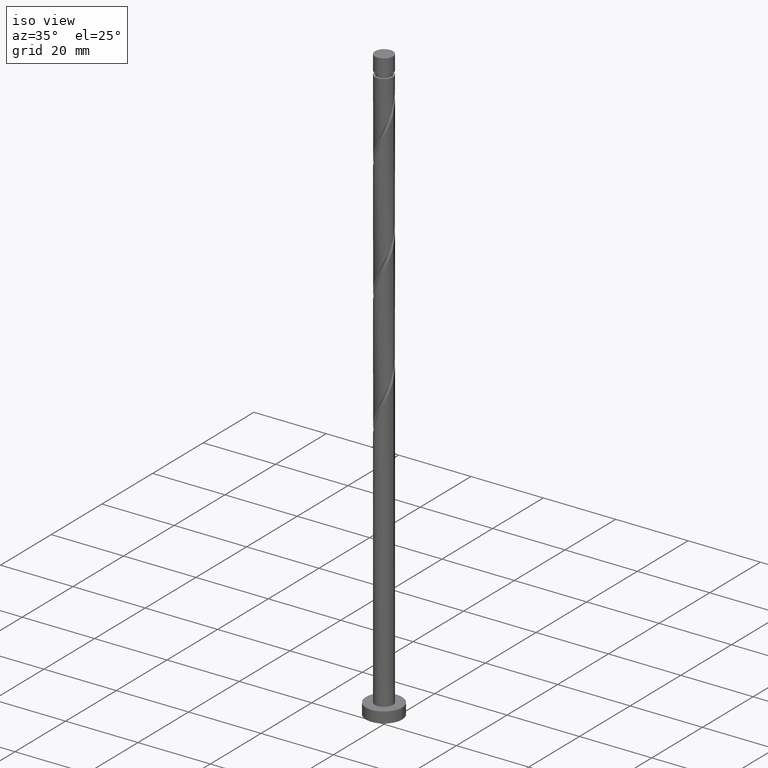
[diagram: clean part render]
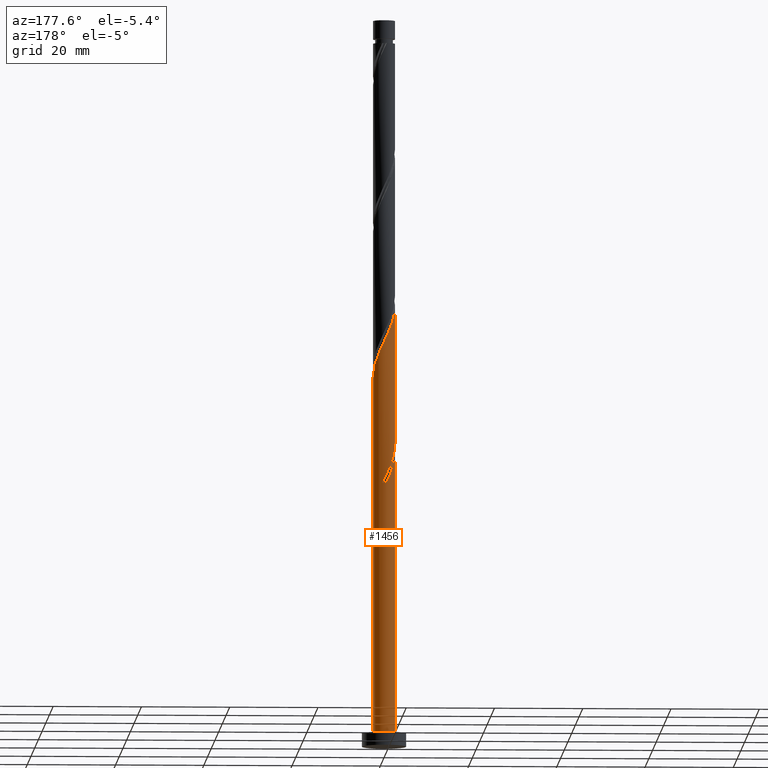
[diagram: tour spotlight — one face highlighted and labeled with its STEP entity id]
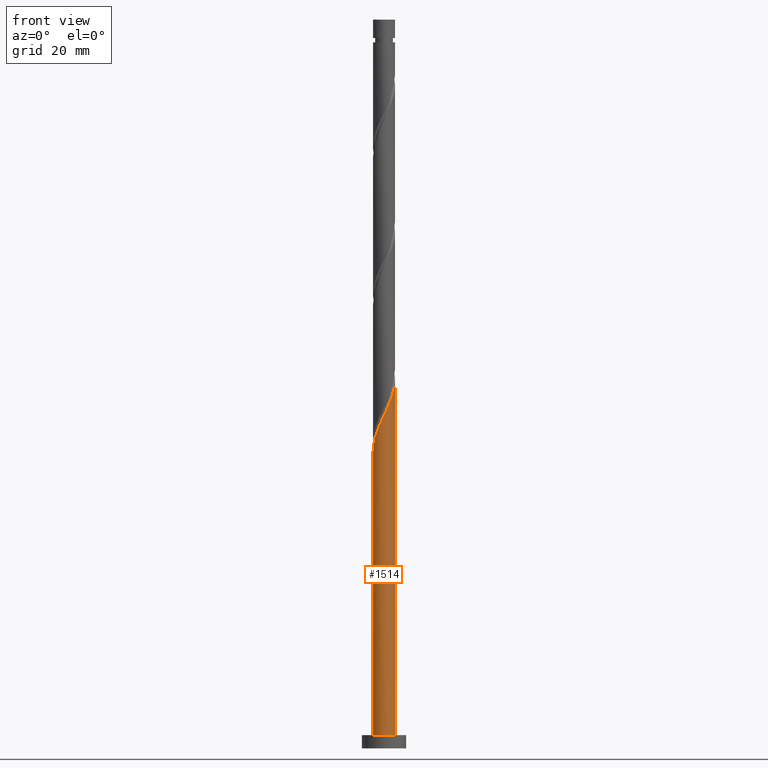
[diagram: tour spotlight — one face highlighted and labeled with its STEP entity id]
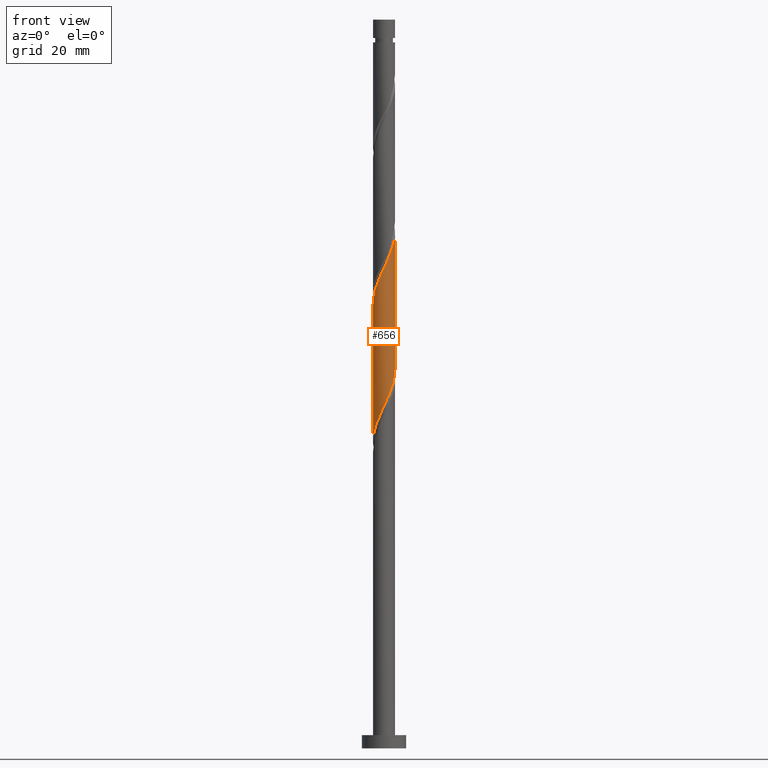
[diagram: tour spotlight — one face highlighted and labeled with its STEP entity id]
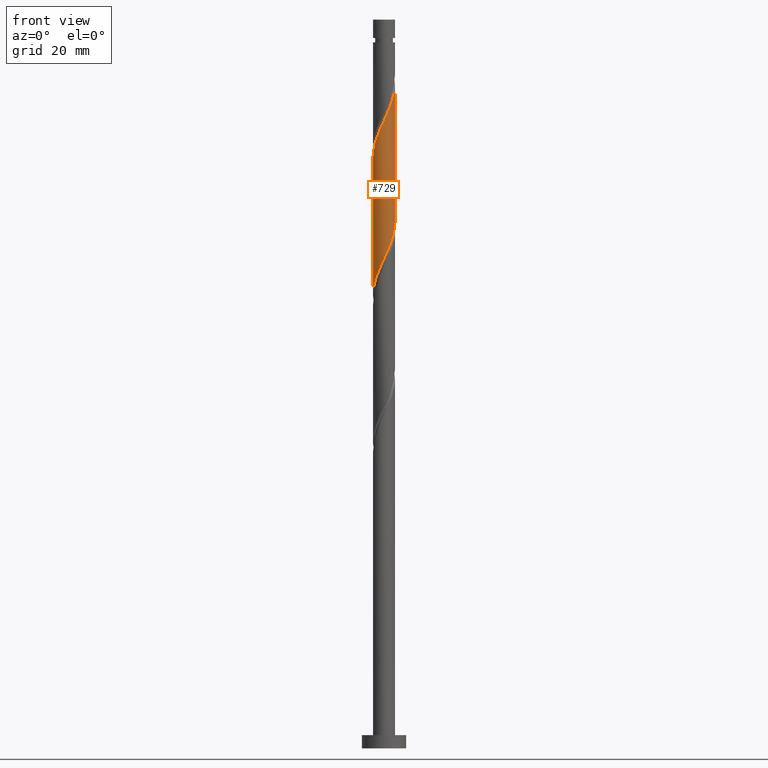
[diagram: tour spotlight — one face highlighted and labeled with its STEP entity id]
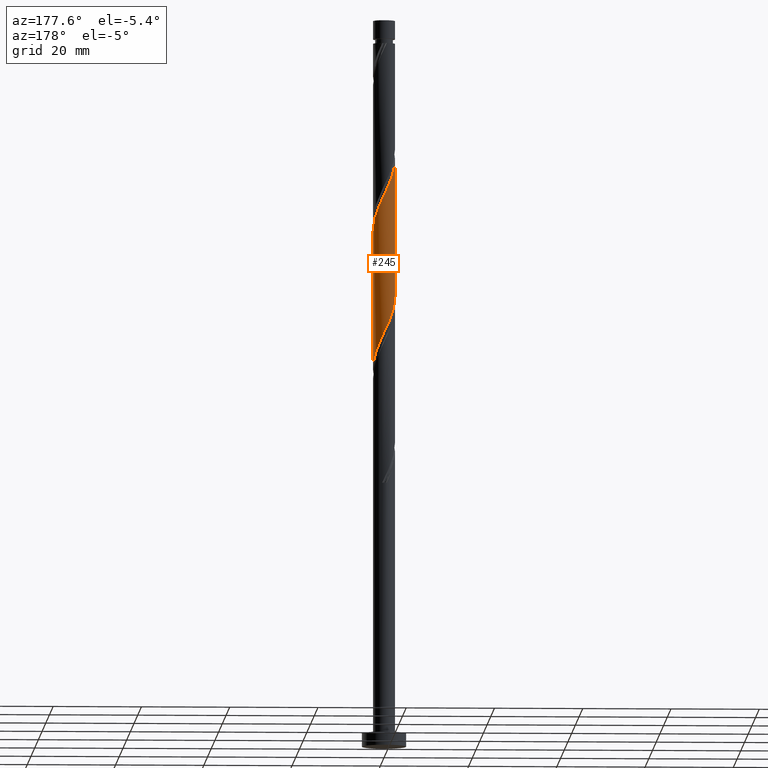
[diagram: tour spotlight — one face highlighted and labeled with its STEP entity id]
A machine part: a face-by-face anatomy tour. The part has 21 B-rep faces; the first image is the clean iso view, then the 5 largest visible faces are spotlighted one at a time (largest first), each with its STEP entity span.

Face 1 — auxiliary view, entity #1456. In plain terms, the highlighted cylindrical surface (edge-blend (fillet) strip) has radius 2.5 mm, axis along (-0, -0, -1).
Definition (entity closure, byte-faithful):
#18 = CARTESIAN_POINT ( 'NONE',  ( -0.4974937185533109263, 2.450000000000003286, 93.16975920857075266 ) ) ;
#36 = VERTEX_POINT ( 'NONE', #1243 ) ;
#42 = DIRECTION ( 'NONE',  ( -0.000000000000000000, -0.000000000000000000, -1.000000000000000000 ) ) ;
#47 = CARTESIAN_POINT ( 'NONE',  ( 2.500000000000000000, 3.061616997868383141E-16, 165.0000000000000000 ) ) ;
#50 = ORIENTED_EDGE ( 'NONE', *, *, #602, .F. ) ;
#57 = VECTOR ( 'NONE', #42, 1000.000000000000000 ) ;
#100 = CARTESIAN_POINT ( 'NONE',  ( -1.655842198490354633, 1.873015379995222274, 62.61420365301516711 ) ) ;
#151 = CARTESIAN_POINT ( 'NONE',  ( -1.902429351286331505, 1.655019618953363025, 96.64198143079296699 ) ) ;
#171 = CARTESIAN_POINT ( 'NONE',  ( 1.873015379995223606, 1.655842198490353745, 87.61420365301518132 ) ) ;
#178 = CARTESIAN_POINT ( 'NONE',  ( -0.1749450994641887080, 2.515496290581588301, 92.47531476412630980 ) ) ;
#216 = CARTESIAN_POINT ( 'NONE',  ( 0.000000000000000000, 0.000000000000000000, 3.000000000000000000 ) ) ;
#226 = VERTEX_POINT ( 'NONE', #1570 ) ;
#268 = CIRCLE ( 'NONE', #519, 2.500000000000000000 ) ;
#280 = CARTESIAN_POINT ( 'NONE',  ( -2.370509098548533089, 0.7941578015096484311, 65.39198143079298120 ) ) ;
#288 = CARTESIAN_POINT ( 'NONE',  ( -2.495279123588691306, 0.1535646293339487656, 66.78087031968186693 ) ) ;
#299 = EDGE_CURVE ( 'NONE', #1114, #1501, #1429, .T. ) ;
#301 = CARTESIAN_POINT ( 'NONE',  ( 2.091011141037082854, 1.409255045694377761, 86.91975920857072424 ) ) ;
#316 = CARTESIAN_POINT ( 'NONE',  ( -2.500000000000003553, 0.07685487914418949462, 100.2763621986658364 ) ) ;
#330 = CARTESIAN_POINT ( 'NONE',  ( -1.409255045694379316, 2.091011141037082410, 95.25309254190408126 ) ) ;
#361 = CARTESIAN_POINT ( 'NONE',  ( 0.000000000000000000, 0.000000000000000000, 165.0000000000000000 ) ) ;
#433 = VERTEX_POINT ( 'NONE', #884 ) ;
#442 = CARTESIAN_POINT ( 'NONE',  ( -2.450000000000000178, 0.4974937185533112594, 68.16975920857075266 ) ) ;
#445 = CARTESIAN_POINT ( 'NONE',  ( -2.495279123588691306, 0.1535646293339487656, 100.1142036530151813 ) ) ;
#449 = CARTESIAN_POINT ( 'NONE',  ( -2.237757425227747010, 1.114648691668404634, 66.78087031968185272 ) ) ;
#452 = CARTESIAN_POINT ( 'NONE',  ( 0.1535646293339503476, 2.495279123588691306, 91.78087031968188114 ) ) ;
#458 = LINE ( 'NONE', #47, #57 ) ;
#468 =( BOUNDED_CURVE ( )  B_SPLINE_CURVE ( 2, ( #816, #1210, #1340, #926, #100, #645, #1348, #1464, #280, #1724, #288, #1201, #672 ),
 .UNSPECIFIED., .F., .T. ) 
 B_SPLINE_CURVE_WITH_KNOTS ( ( 3, 2, 2, 2, 2, 2, 3 ),
 ( 0.000000000000000000, 0.01041666666666662966, 0.02083333333333337034, 0.03125000000000000000, 0.04166666666666662966, 0.05208333333333337034, 0.05453176698144644730 ),
 .UNSPECIFIED. ) 
 CURVE ( )  GEOMETRIC_REPRESENTATION_ITEM ( )  RATIONAL_B_SPLINE_CURVE ( ( 0.9090909090909276014, 0.9013135103398458581, 0.9090909090909276014, 0.9013135103398458581, 0.9090909090909276014, 0.9013135103398458581, 0.9090909090909276014, 0.9013135103398458581, 0.9090909090909276014, 0.9013135103398458581, 0.9090909090909276014, 0.9072628343904212134, 0.9062941362546477198 ) ) 
 REPRESENTATION_ITEM ( '' )  );
#501 = DIRECTION ( 'NONE',  ( 0.000000000000000000, 0.000000000000000000, 1.000000000000000000 ) ) ;
#508 = LINE ( 'NONE', #1716, #1112 ) ;
#519 = AXIS2_PLACEMENT_3D ( 'NONE', #1356, #723, #982 ) ;
#556 = CARTESIAN_POINT ( 'NONE',  ( -2.500000000000003553, 4.845026159732889788E-15, 100.4395258866939997 ) ) ;
#568 = CARTESIAN_POINT ( 'NONE',  ( -2.265956240501273644, 1.106241244887208985, 98.03087031968182430 ) ) ;
#570 = CARTESIAN_POINT ( 'NONE',  ( -0.1535646293339475998, 2.495279123588687309, 61.22531476412629559 ) ) ;
#578 = CARTESIAN_POINT ( 'NONE',  ( -0.8200423376424317290, 2.384503709418419160, 93.86420365301520974 ) ) ;
#585 = ORIENTED_EDGE ( 'NONE', *, *, #1398, .F. ) ;
#588 = CARTESIAN_POINT ( 'NONE',  ( 2.237757425227751451, 1.114648691668404190, 86.22531476412629559 ) ) ;
#602 = EDGE_CURVE ( 'NONE', #1096, #779, #468, .T. ) ;
#611 = ORIENTED_EDGE ( 'NONE', *, *, #862, .T. ) ;
#637 = CARTESIAN_POINT ( 'NONE',  ( 0.4974937185533118145, 2.449999999999999734, 59.83642587523740985 ) ) ;
#645 = CARTESIAN_POINT ( 'NONE',  ( -1.902429351286331505, 1.655019618953363025, 63.30864809745963129 ) ) ;
#647 = DIRECTION ( 'NONE',  ( -0.000000000000000000, -0.000000000000000000, -1.000000000000000000 ) ) ;
#651 = CARTESIAN_POINT ( 'NONE',  ( -2.500000000000000444, -1.055737181719581354E-14, 69.23332586378080578 ) ) ;
#663 = ORIENTED_EDGE ( 'NONE', *, *, #1488, .F. ) ;
#672 = CARTESIAN_POINT ( 'NONE',  ( -2.500000000000003997, -2.138391175437664181E-15, 67.10619255336068534 ) ) ;
#704 = CARTESIAN_POINT ( 'NONE',  ( -0.4974937185533108153, 2.450000000000003286, 59.83642587523740985 ) ) ;
#708 = CARTESIAN_POINT ( 'NONE',  ( 1.655019618953364802, 1.902429351286330395, 88.30864809745963839 ) ) ;
#716 = VECTOR ( 'NONE', #1294, 1000.000000000000000 ) ;
#717 = CARTESIAN_POINT ( 'NONE',  ( 2.500000000000003997, 6.355358388538512985E-16, 83.77285922002732832 ) ) ;
#723 = DIRECTION ( 'NONE',  ( 0.000000000000000000, -0.000000000000000000, -1.000000000000000000 ) ) ;
#779 = VERTEX_POINT ( 'NONE', #1654 ) ;
#782 = DIRECTION ( 'NONE',  ( 1.000000000000000000, 0.000000000000000000, 0.000000000000000000 ) ) ;
#789 = EDGE_CURVE ( 'NONE', #433, #1508, #1672, .T. ) ;
#816 = CARTESIAN_POINT ( 'NONE',  ( -0.4974937185533108153, 2.450000000000003286, 59.83642587523740985 ) ) ;
#824 = EDGE_CURVE ( 'NONE', #1096, #1501, #268, .T. ) ;
#832 = CIRCLE ( 'NONE', #1723, 2.500000000000000000 ) ;
#835 = CARTESIAN_POINT ( 'NONE',  ( -1.655842198490354633, 1.873015379995222274, 95.94753698634850991 ) ) ;
#840 = EDGE_LOOP ( 'NONE', ( #1625, #611, #912, #585, #50, #1273, #1054, #663 ) ) ;
#852 = CARTESIAN_POINT ( 'NONE',  ( 2.500000000000003109, 0.2512594538148059109, 84.30628558921664251 ) ) ;
#856 = CARTESIAN_POINT ( 'NONE',  ( -2.091011141037078858, 1.409255045694377539, 66.08642587523740985 ) ) ;
#862 = EDGE_CURVE ( 'NONE', #433, #226, #458, .T. ) ;
#884 = CARTESIAN_POINT ( 'NONE',  ( 2.500000000000003997, 6.355358388538512985E-16, 83.77285922002732832 ) ) ;
#912 = ORIENTED_EDGE ( 'NONE', *, *, #1383, .T. ) ;
#926 = CARTESIAN_POINT ( 'NONE',  ( -1.409255045694379316, 2.091011141037082410, 61.91975920857075266 ) ) ;
#982 = DIRECTION ( 'NONE',  ( -1.000000000000000000, 0.000000000000000000, 0.000000000000000000 ) ) ;
#1034 = CARTESIAN_POINT ( 'NONE',  ( -2.500000000000003553, 4.845026159732888999E-15, 100.4395258866939997 ) ) ;
#1054 = ORIENTED_EDGE ( 'NONE', *, *, #299, .F. ) ;
#1064 = DIRECTION ( 'NONE',  ( -1.000000000000000000, 0.000000000000000000, 0.000000000000000000 ) ) ;
#1096 = VERTEX_POINT ( 'NONE', #704 ) ;
#1112 = VECTOR ( 'NONE', #1423, 1000.000000000000000 ) ;
#1114 = VERTEX_POINT ( 'NONE', #651 ) ;
#1121 = CARTESIAN_POINT ( 'NONE',  ( -1.655019618953360139, 1.902429351286329506, 64.69753698634852412 ) ) ;
#1130 = CARTESIAN_POINT ( 'NONE',  ( -0.4820743581320864890, 2.475061956595791646, 61.91975920857074556 ) ) ;
#1177 = CYLINDRICAL_SURFACE ( 'NONE', #1382, 2.500000000000000000 ) ;
#1201 = CARTESIAN_POINT ( 'NONE',  ( -2.500000000000003997, 0.07685487914417947486, 66.94302886533255048 ) ) ;
#1210 = CARTESIAN_POINT ( 'NONE',  ( -0.8200423376424317290, 2.384503709418419160, 60.53087031968185983 ) ) ;
#1243 = CARTESIAN_POINT ( 'NONE',  ( -2.500000000000000000, 0.000000000000000000, 3.000000000000000000 ) ) ;
#1247 = CARTESIAN_POINT ( 'NONE',  ( -0.7941578015096466547, 2.370509098548529536, 62.61420365301519553 ) ) ;
#1253 = CARTESIAN_POINT ( 'NONE',  ( 0.7941578015096494303, 2.370509098548533089, 90.39198143079299541 ) ) ;
#1259 = CARTESIAN_POINT ( 'NONE',  ( -2.384503709418416051, 0.8200423376424313959, 67.47531476412630980 ) ) ;
#1262 = CARTESIAN_POINT ( 'NONE',  ( -1.114648691668405300, 2.237757425227751007, 94.55864809745962418 ) ) ;
#1273 = ORIENTED_EDGE ( 'NONE', *, *, #824, .T. ) ;
#1294 = DIRECTION ( 'NONE',  ( -0.000000000000000000, -0.000000000000000000, -1.000000000000000000 ) ) ;
#1320 = FACE_OUTER_BOUND ( 'NONE', #840, .T. ) ;
#1340 = CARTESIAN_POINT ( 'NONE',  ( -1.114648691668405300, 2.237757425227751007, 61.22531476412629559 ) ) ;
#1348 = CARTESIAN_POINT ( 'NONE',  ( -2.084192795893802685, 1.380630431920286227, 64.00309254190408126 ) ) ;
#1356 = CARTESIAN_POINT ( 'NONE',  ( 0.000000000000000000, 0.000000000000000000, 59.83642587523740985 ) ) ;
#1378 = CARTESIAN_POINT ( 'NONE',  ( 0.4820743581320892646, 2.475061956595793866, 91.08642587523743828 ) ) ;
#1380 = CARTESIAN_POINT ( 'NONE',  ( 0.4974937185533118145, 2.449999999999999734, 59.83642587523740985 ) ) ;
#1382 = AXIS2_PLACEMENT_3D ( 'NONE', #361, #647, #1064 ) ;
#1383 = EDGE_CURVE ( 'NONE', #226, #36, #832, .T. ) ;
#1387 = CARTESIAN_POINT ( 'NONE',  ( 2.384503709418420492, 0.8200423376424312849, 85.53087031968185272 ) ) ;
#1398 = EDGE_CURVE ( 'NONE', #779, #36, #1693, .T. ) ;
#1423 = DIRECTION ( 'NONE',  ( -0.000000000000000000, -0.000000000000000000, -1.000000000000000000 ) ) ;
#1429 =( BOUNDED_CURVE ( )  B_SPLINE_CURVE ( 2, ( #1650, #1643, #442, #1259, #449, #856, #1631, #1121, #1665, #1515, #1247, #1130, #570, #1505, #1380 ),
 .UNSPECIFIED., .F., .T. ) 
 B_SPLINE_CURVE_WITH_KNOTS ( ( 3, 2, 2, 2, 2, 2, 2, 3 ),
 ( 0.9295317669814462391, 0.9375000000000000000, 0.9479166666666666297, 0.9583333333333333703, 0.9687500000000000000, 0.9791666666666666297, 0.9895833333333333703, 1.000000000000000000 ),
 .UNSPECIFIED. ) 
 CURVE ( )  GEOMETRIC_REPRESENTATION_ITEM ( )  RATIONAL_B_SPLINE_CURVE ( ( 0.9062941362546417245, 0.9031415850403458068, 0.9090909090909213841, 0.9013135103398396408, 0.9090909090909213841, 0.9013135103398396408, 0.9090909090909213841, 0.9013135103398396408, 0.9090909090909213841, 0.9013135103398396408, 0.9090909090909213841, 0.9013135103398396408, 0.9090909090909213841, 0.9013135103398396408, 0.9090909090909213841 ) ) 
 REPRESENTATION_ITEM ( '' )  );
#1456 = ADVANCED_FACE ( 'NONE', ( #1320 ), #1177, .T. ) ;
#1464 = CARTESIAN_POINT ( 'NONE',  ( -2.265956240501273644, 1.106241244887208985, 64.69753698634852412 ) ) ;
#1488 = EDGE_CURVE ( 'NONE', #1508, #1114, #508, .T. ) ;
#1491 = CARTESIAN_POINT ( 'NONE',  ( 1.380630431920286449, 2.084192795893802241, 89.00309254190408126 ) ) ;
#1501 = VERTEX_POINT ( 'NONE', #637 ) ;
#1505 = CARTESIAN_POINT ( 'NONE',  ( 0.1749450994641913726, 2.515496290581584748, 60.53087031968185272 ) ) ;
#1508 = VERTEX_POINT ( 'NONE', #1034 ) ;
#1511 = CARTESIAN_POINT ( 'NONE',  ( -2.370509098548533089, 0.7941578015096484311, 98.72531476412629559 ) ) ;
#1515 = CARTESIAN_POINT ( 'NONE',  ( -1.106241244887206765, 2.265956240501270536, 63.30864809745964550 ) ) ;
#1526 = CARTESIAN_POINT ( 'NONE',  ( -2.084192795893802685, 1.380630431920286227, 97.33642587523739564 ) ) ;
#1570 = CARTESIAN_POINT ( 'NONE',  ( 2.500000000000000000, 3.061616997868383141E-16, 3.000000000000000000 ) ) ;
#1625 = ORIENTED_EDGE ( 'NONE', *, *, #789, .F. ) ;
#1627 = CARTESIAN_POINT ( 'NONE',  ( 2.450000000000003286, 0.4974937185533111483, 84.83642587523742407 ) ) ;
#1631 = CARTESIAN_POINT ( 'NONE',  ( -1.873015379995218499, 1.655842198490353079, 65.39198143079296699 ) ) ;
#1637 = CARTESIAN_POINT ( 'NONE',  ( -2.475061956595793866, 0.4820743581320877658, 99.41975920857075266 ) ) ;
#1643 = CARTESIAN_POINT ( 'NONE',  ( -2.500000000000000888, 0.2512594538148021917, 68.69989949459153422 ) ) ;
#1647 = CARTESIAN_POINT ( 'NONE',  ( 1.106241244887210096, 2.265956240501273200, 89.69753698634852412 ) ) ;
#1650 = CARTESIAN_POINT ( 'NONE',  ( -2.500000000000000444, -1.055737181719581354E-14, 69.23332586378080578 ) ) ;
#1654 = CARTESIAN_POINT ( 'NONE',  ( -2.500000000000003997, -2.138391175437664181E-15, 67.10619255336068534 ) ) ;
#1665 = CARTESIAN_POINT ( 'NONE',  ( -1.380630431920283563, 2.084192795893799577, 64.00309254190406705 ) ) ;
#1672 =( BOUNDED_CURVE ( )  B_SPLINE_CURVE ( 2, ( #717, #852, #1627, #1387, #588, #301, #171, #708, #1491, #1647, #1253, #1378, #452, #178, #18, #578, #1262, #330, #835, #151, #1526, #568, #1511, #1637, #445, #316, #556 ),
 .UNSPECIFIED., .F., .T. ) 
 B_SPLINE_CURVE_WITH_KNOTS ( ( 3, 2, 2, 2, 2, 2, 2, 2, 2, 2, 2, 2, 2, 3 ),
 ( 0.1795317669814464334, 0.1875000000000000000, 0.1979166666666666297, 0.2083333333333333703, 0.2187500000000000000, 0.2291666666666666297, 0.2395833333333333703, 0.2500000000000000000, 0.2604166666666666297, 0.2708333333333333703, 0.2812500000000000000, 0.2916666666666666297, 0.3020833333333333703, 0.3045317669814461281 ),
 .UNSPECIFIED. ) 
 CURVE ( )  GEOMETRIC_REPRESENTATION_ITEM ( )  RATIONAL_B_SPLINE_CURVE ( ( 0.9062941362546477198, 0.9031415850403521350, 0.9090909090909276014, 0.9013135103398458581, 0.9090909090909276014, 0.9013135103398458581, 0.9090909090909276014, 0.9013135103398458581, 0.9090909090909276014, 0.9013135103398458581, 0.9090909090909276014, 0.9013135103398458581, 0.9090909090909276014, 0.9013135103398458581, 0.9090909090909276014, 0.9013135103398458581, 0.9090909090909276014, 0.9013135103398458581, 0.9090909090909276014, 0.9013135103398458581, 0.9090909090909276014, 0.9013135103398458581, 0.9090909090909276014, 0.9013135103398458581, 0.9090909090909276014, 0.9072628343904214354, 0.9062941362546479418 ) ) 
 REPRESENTATION_ITEM ( '' )  );
#1693 = LINE ( 'NONE', #1709, #716 ) ;
#1709 = CARTESIAN_POINT ( 'NONE',  ( -2.500000000000000000, 0.000000000000000000, 165.0000000000000000 ) ) ;
#1716 = CARTESIAN_POINT ( 'NONE',  ( -2.500000000000000000, 0.000000000000000000, 165.0000000000000000 ) ) ;
#1723 = AXIS2_PLACEMENT_3D ( 'NONE', #216, #501, #782 ) ;
#1724 = CARTESIAN_POINT ( 'NONE',  ( -2.475061956595793866, 0.4820743581320877658, 66.08642587523740985 ) ) ;

Face 2 — front view, entity #1514. In plain terms, the highlighted cylindrical surface (edge-blend (fillet) strip) has radius 2.5 mm, axis along (-0, -0, -1).
Definition (entity closure, byte-faithful):
#11 = CARTESIAN_POINT ( 'NONE',  ( -1.380630431920286227, -2.084192795893802685, 72.33642587523740985 ) ) ;
#36 = VERTEX_POINT ( 'NONE', #1243 ) ;
#42 = DIRECTION ( 'NONE',  ( -0.000000000000000000, -0.000000000000000000, -1.000000000000000000 ) ) ;
#47 = CARTESIAN_POINT ( 'NONE',  ( 2.500000000000000000, 3.061616997868383141E-16, 165.0000000000000000 ) ) ;
#57 = VECTOR ( 'NONE', #42, 1000.000000000000000 ) ;
#108 = CARTESIAN_POINT ( 'NONE',  ( 2.500000000000003997, 6.355358388538512985E-16, 83.77285922002732832 ) ) ;
#133 = EDGE_LOOP ( 'NONE', ( #448, #287, #1717, #398 ) ) ;
#155 = CARTESIAN_POINT ( 'NONE',  ( 2.500000000000003997, -0.07685487914418140387, 83.60969553199919346 ) ) ;
#226 = VERTEX_POINT ( 'NONE', #1570 ) ;
#261 = CARTESIAN_POINT ( 'NONE',  ( -2.384503709418419604, -0.8200423376424313959, 68.86420365301518132 ) ) ;
#287 = ORIENTED_EDGE ( 'NONE', *, *, #1104, .F. ) ;
#305 = CARTESIAN_POINT ( 'NONE',  ( 0.4974937185533112594, -2.450000000000003286, 76.50309254190409547 ) ) ;
#352 = DIRECTION ( 'NONE',  ( -0.000000000000000000, -0.000000000000000000, -1.000000000000000000 ) ) ;
#379 = FACE_OUTER_BOUND ( 'NONE', #133, .T. ) ;
#387 = CARTESIAN_POINT ( 'NONE',  ( 1.902429351286330839, -1.655019618953363469, 79.97531476412628137 ) ) ;
#398 = ORIENTED_EDGE ( 'NONE', *, *, #1436, .T. ) ;
#403 = CARTESIAN_POINT ( 'NONE',  ( -2.500000000000003109, -0.2512594538148078538, 67.63961892254997110 ) ) ;
#433 = VERTEX_POINT ( 'NONE', #884 ) ;
#448 = ORIENTED_EDGE ( 'NONE', *, *, #862, .F. ) ;
#458 = LINE ( 'NONE', #47, #57 ) ;
#532 = CARTESIAN_POINT ( 'NONE',  ( 1.655842198490354633, -1.873015379995222718, 79.28087031968185272 ) ) ;
#716 = VECTOR ( 'NONE', #1294, 1000.000000000000000 ) ;
#779 = VERTEX_POINT ( 'NONE', #1654 ) ;
#788 = CARTESIAN_POINT ( 'NONE',  ( 1.409255045694377761, -2.091011141037082854, 78.58642587523743828 ) ) ;
#797 = CARTESIAN_POINT ( 'NONE',  ( -2.237757425227751007, -1.114648691668405078, 69.55864809745962418 ) ) ;
#862 = EDGE_CURVE ( 'NONE', #433, #226, #458, .T. ) ;
#884 = CARTESIAN_POINT ( 'NONE',  ( 2.500000000000003997, 6.355358388538512985E-16, 83.77285922002732832 ) ) ;
#902 = CARTESIAN_POINT ( 'NONE',  ( 0.000000000000000000, 0.000000000000000000, 3.000000000000000000 ) ) ;
#918 = CIRCLE ( 'NONE', #1360, 2.500000000000000000 ) ;
#925 = CARTESIAN_POINT ( 'NONE',  ( -0.1535646293339488766, -2.495279123588691306, 75.11420365301518132 ) ) ;
#931 = CARTESIAN_POINT ( 'NONE',  ( 2.084192795893801797, -1.380630431920286449, 80.66975920857072424 ) ) ;
#1005 =( BOUNDED_CURVE ( )  B_SPLINE_CURVE ( 2, ( #1496, #403, #1452, #261, #797, #1581, #1113, #1590, #11, #1722, #1102, #1597, #925, #1192, #305, #1633, #1249, #788, #532, #387, #931, #1330, #1209, #1337, #1324, #155, #108 ),
 .UNSPECIFIED., .F., .T. ) 
 B_SPLINE_CURVE_WITH_KNOTS ( ( 3, 2, 2, 2, 2, 2, 2, 2, 2, 2, 2, 2, 2, 3 ),
 ( 0.05453176698144644730, 0.06250000000000000000, 0.07291666666666662966, 0.08333333333333337034, 0.09375000000000000000, 0.1041666666666666297, 0.1145833333333333703, 0.1250000000000000000, 0.1354166666666666297, 0.1458333333333333703, 0.1562500000000000000, 0.1666666666666666297, 0.1770833333333333703, 0.1795317669814464334 ),
 .UNSPECIFIED. ) 
 CURVE ( )  GEOMETRIC_REPRESENTATION_ITEM ( )  RATIONAL_B_SPLINE_CURVE ( ( 0.9062941362546477198, 0.9031415850403521350, 0.9090909090909276014, 0.9013135103398458581, 0.9090909090909276014, 0.9013135103398458581, 0.9090909090909276014, 0.9013135103398458581, 0.9090909090909276014, 0.9013135103398458581, 0.9090909090909276014, 0.9013135103398458581, 0.9090909090909276014, 0.9013135103398458581, 0.9090909090909276014, 0.9013135103398458581, 0.9090909090909276014, 0.9013135103398458581, 0.9090909090909276014, 0.9013135103398458581, 0.9090909090909276014, 0.9013135103398458581, 0.9090909090909276014, 0.9013135103398458581, 0.9090909090909276014, 0.9072628343904212134, 0.9062941362546477198 ) ) 
 REPRESENTATION_ITEM ( '' )  );
#1102 = CARTESIAN_POINT ( 'NONE',  ( -0.7941578015096492082, -2.370509098548533089, 73.72531476412630980 ) ) ;
#1104 = EDGE_CURVE ( 'NONE', #779, #433, #1005, .T. ) ;
#1113 = CARTESIAN_POINT ( 'NONE',  ( -1.873015379995222274, -1.655842198490354633, 70.94753698634853833 ) ) ;
#1192 = CARTESIAN_POINT ( 'NONE',  ( 0.1749450994641902069, -2.515496290581588301, 75.80864809745965260 ) ) ;
#1209 = CARTESIAN_POINT ( 'NONE',  ( 2.370509098548533089, -0.7941578015096492082, 82.05864809745963839 ) ) ;
#1243 = CARTESIAN_POINT ( 'NONE',  ( -2.500000000000000000, 0.000000000000000000, 3.000000000000000000 ) ) ;
#1249 = CARTESIAN_POINT ( 'NONE',  ( 1.114648691668404856, -2.237757425227751451, 77.89198143079296699 ) ) ;
#1294 = DIRECTION ( 'NONE',  ( -0.000000000000000000, -0.000000000000000000, -1.000000000000000000 ) ) ;
#1324 = CARTESIAN_POINT ( 'NONE',  ( 2.495279123588691306, -0.1535646293339500978, 83.44753698634849570 ) ) ;
#1330 = CARTESIAN_POINT ( 'NONE',  ( 2.265956240501272756, -1.106241244887209874, 81.36420365301519553 ) ) ;
#1337 = CARTESIAN_POINT ( 'NONE',  ( 2.475061956595793866, -0.4820743581320890980, 82.75309254190408126 ) ) ;
#1360 = AXIS2_PLACEMENT_3D ( 'NONE', #902, #1554, #1448 ) ;
#1398 = EDGE_CURVE ( 'NONE', #779, #36, #1693, .T. ) ;
#1433 = DIRECTION ( 'NONE',  ( -1.000000000000000000, 0.000000000000000000, 0.000000000000000000 ) ) ;
#1436 = EDGE_CURVE ( 'NONE', #36, #226, #918, .T. ) ;
#1448 = DIRECTION ( 'NONE',  ( 1.000000000000000000, 0.000000000000000000, 0.000000000000000000 ) ) ;
#1452 = CARTESIAN_POINT ( 'NONE',  ( -2.450000000000003286, -0.4974937185533114259, 68.16975920857073845 ) ) ;
#1496 = CARTESIAN_POINT ( 'NONE',  ( -2.500000000000003997, -2.138391175437664181E-15, 67.10619255336068534 ) ) ;
#1514 = ADVANCED_FACE ( 'NONE', ( #379 ), #1702, .T. ) ;
#1554 = DIRECTION ( 'NONE',  ( 0.000000000000000000, 0.000000000000000000, 1.000000000000000000 ) ) ;
#1564 = CARTESIAN_POINT ( 'NONE',  ( 0.000000000000000000, 0.000000000000000000, 165.0000000000000000 ) ) ;
#1570 = CARTESIAN_POINT ( 'NONE',  ( 2.500000000000000000, 3.061616997868383141E-16, 3.000000000000000000 ) ) ;
#1581 = CARTESIAN_POINT ( 'NONE',  ( -2.091011141037082410, -1.409255045694378428, 70.25309254190409547 ) ) ;
#1590 = CARTESIAN_POINT ( 'NONE',  ( -1.655019618953363469, -1.902429351286330839, 71.64198143079293857 ) ) ;
#1597 = CARTESIAN_POINT ( 'NONE',  ( -0.4820743581320879878, -2.475061956595793866, 74.41975920857075266 ) ) ;
#1607 = AXIS2_PLACEMENT_3D ( 'NONE', #1564, #352, #1433 ) ;
#1633 = CARTESIAN_POINT ( 'NONE',  ( 0.8200423376424312849, -2.384503709418419604, 77.19753698634853833 ) ) ;
#1654 = CARTESIAN_POINT ( 'NONE',  ( -2.500000000000003997, -2.138391175437664181E-15, 67.10619255336068534 ) ) ;
#1693 = LINE ( 'NONE', #1709, #716 ) ;
#1702 = CYLINDRICAL_SURFACE ( 'NONE', #1607, 2.500000000000000000 ) ;
#1709 = CARTESIAN_POINT ( 'NONE',  ( -2.500000000000000000, 0.000000000000000000, 165.0000000000000000 ) ) ;
#1717 = ORIENTED_EDGE ( 'NONE', *, *, #1398, .T. ) ;
#1722 = CARTESIAN_POINT ( 'NONE',  ( -1.106241244887209874, -2.265956240501273200, 73.03087031968188114 ) ) ;

Face 3 — front view, entity #656. In plain terms, the highlighted cylindrical surface (edge-blend (fillet) strip) has radius 2.5 mm, axis along (-0, -0, -1).
Definition (entity closure, byte-faithful):
#60 = VERTEX_POINT ( 'NONE', #141 ) ;
#98 = CARTESIAN_POINT ( 'NONE',  ( -1.655842198490353745, -1.873015379995218277, 73.72531476412630980 ) ) ;
#111 = CARTESIAN_POINT ( 'NONE',  ( 0.000000000000000000, 0.000000000000000000, 165.0000000000000000 ) ) ;
#117 = CARTESIAN_POINT ( 'NONE',  ( -2.370509098548529536, -0.7941578015096460996, 70.94753698634853833 ) ) ;
#122 = CARTESIAN_POINT ( 'NONE',  ( -2.237757425227751007, -1.114648691668405078, 102.8919814307929812 ) ) ;
#123 = ORIENTED_EDGE ( 'NONE', *, *, #1287, .F. ) ;
#132 = DIRECTION ( 'NONE',  ( -1.000000000000000000, 0.000000000000000000, 0.000000000000000000 ) ) ;
#141 = CARTESIAN_POINT ( 'NONE',  ( 2.500000000000003997, 6.355358388538512985E-16, 117.1061925533606711 ) ) ;
#142 = CARTESIAN_POINT ( 'NONE',  ( -1.106241244887209874, -2.265956240501273200, 106.3642036530151813 ) ) ;
#170 =( BOUNDED_CURVE ( )  B_SPLINE_CURVE ( 2, ( #1182, #894, #1198, #494, #1451, #1721, #1438, #521, #1191, #386, #1705, #503, #355, #796, #374, #220, #914, #755, #98, #642, #260, #1057, #117, #1028, #1549, #1711, #512 ),
 .UNSPECIFIED., .F., .T. ) 
 B_SPLINE_CURVE_WITH_KNOTS ( ( 3, 2, 2, 2, 2, 2, 2, 2, 2, 2, 2, 2, 2, 3 ),
 ( 0.8045317669814462391, 0.8125000000000000000, 0.8229166666666666297, 0.8333333333333333703, 0.8437500000000000000, 0.8541666666666666297, 0.8645833333333333703, 0.8750000000000000000, 0.8854166666666666297, 0.8958333333333333703, 0.9062500000000000000, 0.9166666666666666297, 0.9270833333333333703, 0.9295317669814462391 ),
 .UNSPECIFIED. ) 
 CURVE ( )  GEOMETRIC_REPRESENTATION_ITEM ( )  RATIONAL_B_SPLINE_CURVE ( ( 0.9062941362546417245, 0.9031415850403458068, 0.9090909090909213841, 0.9013135103398396408, 0.9090909090909213841, 0.9013135103398396408, 0.9090909090909213841, 0.9013135103398396408, 0.9090909090909213841, 0.9013135103398396408, 0.9090909090909213841, 0.9013135103398396408, 0.9090909090909213841, 0.9013135103398396408, 0.9090909090909213841, 0.9013135103398396408, 0.9090909090909213841, 0.9013135103398396408, 0.9090909090909213841, 0.9013135103398396408, 0.9090909090909213841, 0.9013135103398396408, 0.9090909090909213841, 0.9013135103398396408, 0.9090909090909213841, 0.9072628343904151071, 0.9062941362546417245 ) ) 
 REPRESENTATION_ITEM ( '' )  );
#179 = VECTOR ( 'NONE', #583, 1000.000000000000000 ) ;
#185 = VERTEX_POINT ( 'NONE', #1355 ) ;
#220 = CARTESIAN_POINT ( 'NONE',  ( -0.8200423376424321731, -2.384503709418416051, 75.80864809745962418 ) ) ;
#256 = CARTESIAN_POINT ( 'NONE',  ( 0.8200423376424312849, -2.384503709418419604, 110.5308703196818527 ) ) ;
#260 = CARTESIAN_POINT ( 'NONE',  ( -2.084192795893799133, -1.380630431920283341, 72.33642587523740985 ) ) ;
#263 = CARTESIAN_POINT ( 'NONE',  ( 2.500000000000003997, 6.355358388538512985E-16, 117.1061925533606711 ) ) ;
#284 = EDGE_CURVE ( 'NONE', #60, #185, #313, .T. ) ;
#313 = LINE ( 'NONE', #1250, #179 ) ;
#355 = CARTESIAN_POINT ( 'NONE',  ( 0.1535646293339465729, -2.495279123588687309, 77.89198143079299541 ) ) ;
#374 = CARTESIAN_POINT ( 'NONE',  ( -0.4974937185533114814, -2.450000000000000178, 76.50309254190406705 ) ) ;
#386 = CARTESIAN_POINT ( 'NONE',  ( 1.106241244887206321, -2.265956240501270980, 79.97531476412632401 ) ) ;
#396 = CARTESIAN_POINT ( 'NONE',  ( 2.500000000000003997, -0.07685487914418401290, 116.9430288653325505 ) ) ;
#405 = FACE_OUTER_BOUND ( 'NONE', #1576, .T. ) ;
#415 = CARTESIAN_POINT ( 'NONE',  ( 2.084192795893801797, -1.380630431920286449, 114.0030925419040813 ) ) ;
#421 = CARTESIAN_POINT ( 'NONE',  ( -2.500000000000005329, -0.2512594538147979728, 100.9729522558832713 ) ) ;
#494 = CARTESIAN_POINT ( 'NONE',  ( 2.384503709418415607, -0.8200423376424331723, 84.14198143079299541 ) ) ;
#503 = CARTESIAN_POINT ( 'NONE',  ( 0.4820743581320850457, -2.475061956595791646, 78.58642587523742407 ) ) ;
#508 = LINE ( 'NONE', #1716, #1112 ) ;
#512 = CARTESIAN_POINT ( 'NONE',  ( -2.500000000000000444, -1.055737181719581354E-14, 69.23332586378080578 ) ) ;
#515 = CARTESIAN_POINT ( 'NONE',  ( -2.500000000000003553, 4.845026159732889788E-15, 100.4395258866939997 ) ) ;
#521 = CARTESIAN_POINT ( 'NONE',  ( 1.655019618953359251, -1.902429351286330172, 81.36420365301519553 ) ) ;
#525 = CARTESIAN_POINT ( 'NONE',  ( -1.380630431920286227, -2.084192795893802685, 105.6697592085707669 ) ) ;
#535 = CARTESIAN_POINT ( 'NONE',  ( -2.450000000000003286, -0.4974937185533114259, 101.5030925419040813 ) ) ;
#583 = DIRECTION ( 'NONE',  ( -0.000000000000000000, -0.000000000000000000, -1.000000000000000000 ) ) ;
#642 = CARTESIAN_POINT ( 'NONE',  ( -1.902429351286330172, -1.655019618953359917, 73.03087031968189535 ) ) ;
#651 = CARTESIAN_POINT ( 'NONE',  ( -2.500000000000000444, -1.055737181719581354E-14, 69.23332586378080578 ) ) ;
#653 = CARTESIAN_POINT ( 'NONE',  ( -1.655019618953363469, -1.902429351286330839, 104.9753147641263098 ) ) ;
#656 = ADVANCED_FACE ( 'NONE', ( #405 ), #1220, .T. ) ;
#677 = EDGE_CURVE ( 'NONE', #1508, #60, #1613, .T. ) ;
#680 = CARTESIAN_POINT ( 'NONE',  ( -0.7941578015096492082, -2.370509098548533089, 107.0586480974596384 ) ) ;
#734 = ORIENTED_EDGE ( 'NONE', *, *, #284, .F. ) ;
#755 = CARTESIAN_POINT ( 'NONE',  ( -1.409255045694377539, -2.091011141037078858, 74.41975920857076687 ) ) ;
#790 = CARTESIAN_POINT ( 'NONE',  ( 1.409255045694377761, -2.091011141037082854, 111.9197592085707527 ) ) ;
#796 = CARTESIAN_POINT ( 'NONE',  ( -0.1749450994641920665, -2.515496290581585193, 77.19753698634852412 ) ) ;
#799 = CARTESIAN_POINT ( 'NONE',  ( 0.1749450994641902069, -2.515496290581588301, 109.1419814307929954 ) ) ;
#894 = CARTESIAN_POINT ( 'NONE',  ( 2.500000000000000888, -0.2512594538148024692, 85.36656616125820563 ) ) ;
#914 = CARTESIAN_POINT ( 'NONE',  ( -1.114648691668404634, -2.237757425227747010, 75.11420365301516711 ) ) ;
#941 = CARTESIAN_POINT ( 'NONE',  ( 0.4974937185533112594, -2.450000000000003286, 109.8364258752374099 ) ) ;
#956 = CARTESIAN_POINT ( 'NONE',  ( 1.902429351286330839, -1.655019618953363469, 113.3086480974596242 ) ) ;
#1028 = CARTESIAN_POINT ( 'NONE',  ( -2.475061956595791646, -0.4820743581320858229, 70.25309254190406705 ) ) ;
#1034 = CARTESIAN_POINT ( 'NONE',  ( -2.500000000000003553, 4.845026159732888999E-15, 100.4395258866939997 ) ) ;
#1037 = ORIENTED_EDGE ( 'NONE', *, *, #677, .F. ) ;
#1049 = CARTESIAN_POINT ( 'NONE',  ( -2.091011141037082410, -1.409255045694378428, 103.5864258752374099 ) ) ;
#1057 = CARTESIAN_POINT ( 'NONE',  ( -2.265956240501270980, -1.106241244887206321, 71.64198143079296699 ) ) ;
#1061 = CARTESIAN_POINT ( 'NONE',  ( 1.114648691668404856, -2.237757425227751451, 111.2253147641262956 ) ) ;
#1112 = VECTOR ( 'NONE', #1423, 1000.000000000000000 ) ;
#1114 = VERTEX_POINT ( 'NONE', #651 ) ;
#1182 = CARTESIAN_POINT ( 'NONE',  ( 2.500000000000000444, 2.945895535393165928E-15, 85.89999253044747718 ) ) ;
#1191 = CARTESIAN_POINT ( 'NONE',  ( 1.380630431920282675, -2.084192795893800021, 80.66975920857075266 ) ) ;
#1198 = CARTESIAN_POINT ( 'NONE',  ( 2.450000000000000178, -0.4974937185533115924, 84.83642587523742407 ) ) ;
#1220 = CYLINDRICAL_SURFACE ( 'NONE', #1606, 2.500000000000000000 ) ;
#1227 = CARTESIAN_POINT ( 'NONE',  ( 2.370509098548533089, -0.7941578015096492082, 115.3919814307929528 ) ) ;
#1250 = CARTESIAN_POINT ( 'NONE',  ( 2.500000000000000000, 3.061616997868383141E-16, 165.0000000000000000 ) ) ;
#1287 = EDGE_CURVE ( 'NONE', #185, #1114, #170, .T. ) ;
#1325 = CARTESIAN_POINT ( 'NONE',  ( 1.655842198490354633, -1.873015379995222718, 112.6142036530151813 ) ) ;
#1355 = CARTESIAN_POINT ( 'NONE',  ( 2.500000000000000000, 2.945895535393165928E-15, 85.89999253044747718 ) ) ;
#1423 = DIRECTION ( 'NONE',  ( -0.000000000000000000, -0.000000000000000000, -1.000000000000000000 ) ) ;
#1438 = CARTESIAN_POINT ( 'NONE',  ( 1.873015379995218277, -1.655842198490353745, 82.05864809745963839 ) ) ;
#1446 = CARTESIAN_POINT ( 'NONE',  ( -0.1535646293339488766, -2.495279123588691306, 108.4475369863484815 ) ) ;
#1451 = CARTESIAN_POINT ( 'NONE',  ( 2.237757425227745678, -1.114648691668405744, 83.44753698634850991 ) ) ;
#1470 = CARTESIAN_POINT ( 'NONE',  ( 2.495279123588691306, -0.1535646293339500978, 116.7808703196818527 ) ) ;
#1488 = EDGE_CURVE ( 'NONE', #1508, #1114, #508, .T. ) ;
#1508 = VERTEX_POINT ( 'NONE', #1034 ) ;
#1549 = CARTESIAN_POINT ( 'NONE',  ( -2.495279123588687309, -0.1535646293339472668, 69.55864809745963839 ) ) ;
#1576 = EDGE_LOOP ( 'NONE', ( #734, #1037, #1585, #123 ) ) ;
#1582 = CARTESIAN_POINT ( 'NONE',  ( -0.4820743581320879878, -2.475061956595793866, 107.7530925419040813 ) ) ;
#1585 = ORIENTED_EDGE ( 'NONE', *, *, #1488, .T. ) ;
#1591 = CARTESIAN_POINT ( 'NONE',  ( 2.265956240501272756, -1.106241244887209874, 114.6975369863485383 ) ) ;
#1601 = CARTESIAN_POINT ( 'NONE',  ( -2.384503709418419604, -0.8200423376424313959, 102.1975369863485383 ) ) ;
#1606 = AXIS2_PLACEMENT_3D ( 'NONE', #111, #1713, #132 ) ;
#1608 = CARTESIAN_POINT ( 'NONE',  ( -1.873015379995222274, -1.655842198490354633, 104.2808703196818669 ) ) ;
#1613 =( BOUNDED_CURVE ( )  B_SPLINE_CURVE ( 2, ( #515, #421, #535, #1601, #122, #1049, #1608, #653, #525, #142, #680, #1582, #1446, #799, #941, #256, #1061, #790, #1325, #956, #415, #1591, #1227, #1747, #1470, #396, #263 ),
 .UNSPECIFIED., .F., .T. ) 
 B_SPLINE_CURVE_WITH_KNOTS ( ( 3, 2, 2, 2, 2, 2, 2, 2, 2, 2, 2, 2, 2, 3 ),
 ( 0.3045317669814461281, 0.3125000000000000000, 0.3229166666666666297, 0.3333333333333333703, 0.3437500000000000000, 0.3541666666666666297, 0.3645833333333333703, 0.3750000000000000000, 0.3854166666666666297, 0.3958333333333333703, 0.4062500000000000000, 0.4166666666666666297, 0.4270833333333333703, 0.4295317669814463502 ),
 .UNSPECIFIED. ) 
 CURVE ( )  GEOMETRIC_REPRESENTATION_ITEM ( )  RATIONAL_B_SPLINE_CURVE ( ( 0.9062941362546479418, 0.9031415850403519130, 0.9090909090909276014, 0.9013135103398458581, 0.9090909090909276014, 0.9013135103398458581, 0.9090909090909276014, 0.9013135103398458581, 0.9090909090909276014, 0.9013135103398458581, 0.9090909090909276014, 0.9013135103398458581, 0.9090909090909276014, 0.9013135103398458581, 0.9090909090909276014, 0.9013135103398458581, 0.9090909090909276014, 0.9013135103398458581, 0.9090909090909276014, 0.9013135103398458581, 0.9090909090909276014, 0.9013135103398458581, 0.9090909090909276014, 0.9013135103398458581, 0.9090909090909276014, 0.9072628343904212134, 0.9062941362546478308 ) ) 
 REPRESENTATION_ITEM ( '' )  );
#1705 = CARTESIAN_POINT ( 'NONE',  ( 0.7941578015096458776, -2.370509098548529536, 79.28087031968185272 ) ) ;
#1711 = CARTESIAN_POINT ( 'NONE',  ( -2.500000000000000000, -0.07685487914418460964, 69.39648955180896905 ) ) ;
#1713 = DIRECTION ( 'NONE',  ( -0.000000000000000000, -0.000000000000000000, -1.000000000000000000 ) ) ;
#1716 = CARTESIAN_POINT ( 'NONE',  ( -2.500000000000000000, 0.000000000000000000, 165.0000000000000000 ) ) ;
#1721 = CARTESIAN_POINT ( 'NONE',  ( 2.091011141037078414, -1.409255045694378206, 82.75309254190410968 ) ) ;
#1747 = CARTESIAN_POINT ( 'NONE',  ( 2.475061956595793866, -0.4820743581320890980, 116.0864258752374099 ) ) ;

Face 4 — front view, entity #729. In plain terms, the highlighted cylindrical surface (edge-blend (fillet) strip) has radius 2.5 mm, axis along (-0, -0, -1).
Definition (entity closure, byte-faithful):
#81 = CARTESIAN_POINT ( 'NONE',  ( -2.500000000000000000, -0.07685487914417762911, 102.7298228851423119 ) ) ;
#82 = CARTESIAN_POINT ( 'NONE',  ( 1.114648691668404856, -2.237757425227751451, 144.5586480974596100 ) ) ;
#90 = CARTESIAN_POINT ( 'NONE',  ( 2.450000000000000178, -0.4974937185533115924, 118.1697592085707242 ) ) ;
#91 = CARTESIAN_POINT ( 'NONE',  ( -2.500000000000003997, -0.2512594538148040235, 134.3062855892166283 ) ) ;
#95 = DIRECTION ( 'NONE',  ( -0.000000000000000000, -0.000000000000000000, -1.000000000000000000 ) ) ;
#107 = CARTESIAN_POINT ( 'NONE',  ( -0.8200423376424321731, -2.384503709418416051, 109.1419814307929670 ) ) ;
#116 = VECTOR ( 'NONE', #95, 1000.000000000000000 ) ;
#166 = VERTEX_POINT ( 'NONE', #1462 ) ;
#209 = CARTESIAN_POINT ( 'NONE',  ( 2.500000000000003997, -2.018760899888703832E-16, 150.4395258866940424 ) ) ;
#217 = ORIENTED_EDGE ( 'NONE', *, *, #1344, .T. ) ;
#221 = CARTESIAN_POINT ( 'NONE',  ( -1.380630431920286227, -2.084192795893802685, 139.0030925419040670 ) ) ;
#229 = CARTESIAN_POINT ( 'NONE',  ( -2.500000000000000000, 0.000000000000000000, 165.0000000000000000 ) ) ;
#234 = CARTESIAN_POINT ( 'NONE',  ( 2.237757425227745678, -1.114648691668405744, 116.7808703196818385 ) ) ;
#246 = CARTESIAN_POINT ( 'NONE',  ( 0.1535646293339465729, -2.495279123588687309, 111.2253147641262956 ) ) ;
#273 = CYLINDRICAL_SURFACE ( 'NONE', #1720, 2.500000000000000000 ) ;
#337 = CARTESIAN_POINT ( 'NONE',  ( 1.655842198490354633, -1.873015379995222718, 145.9475369863484673 ) ) ;
#350 =( BOUNDED_CURVE ( )  B_SPLINE_CURVE ( 2, ( #1306, #1038, #90, #1208, #234, #905, #787, #1297, #1697, #631, #1728, #622, #246, #1315, #392, #107, #1426, #1587, #930, #1323, #1415, #650, #1571, #777, #1329, #81, #660 ),
 .UNSPECIFIED., .F., .T. ) 
 B_SPLINE_CURVE_WITH_KNOTS ( ( 3, 2, 2, 2, 2, 2, 2, 2, 2, 2, 2, 2, 2, 3 ),
 ( 0.5545317669814463502, 0.5625000000000000000, 0.5729166666666666297, 0.5833333333333333703, 0.5937500000000000000, 0.6041666666666666297, 0.6145833333333333703, 0.6250000000000000000, 0.6354166666666666297, 0.6458333333333333703, 0.6562500000000000000, 0.6666666666666666297, 0.6770833333333333703, 0.6795317669814464612 ),
 .UNSPECIFIED. ) 
 CURVE ( )  GEOMETRIC_REPRESENTATION_ITEM ( )  RATIONAL_B_SPLINE_CURVE ( ( 0.9062941362546416135, 0.9031415850403459178, 0.9090909090909213841, 0.9013135103398396408, 0.9090909090909213841, 0.9013135103398396408, 0.9090909090909213841, 0.9013135103398396408, 0.9090909090909213841, 0.9013135103398396408, 0.9090909090909213841, 0.9013135103398396408, 0.9090909090909213841, 0.9013135103398396408, 0.9090909090909213841, 0.9013135103398396408, 0.9090909090909213841, 0.9013135103398396408, 0.9090909090909213841, 0.9013135103398396408, 0.9090909090909213841, 0.9013135103398396408, 0.9090909090909213841, 0.9013135103398396408, 0.9090909090909213841, 0.9072628343904149961, 0.9062941362546415025 ) ) 
 REPRESENTATION_ITEM ( '' )  );
#369 = CARTESIAN_POINT ( 'NONE',  ( 2.500000000000000000, 2.945895535393165928E-15, 119.2333258637807916 ) ) ;
#392 = CARTESIAN_POINT ( 'NONE',  ( -0.4974937185533114814, -2.450000000000000178, 109.8364258752373956 ) ) ;
#436 = CARTESIAN_POINT ( 'NONE',  ( -2.500000000000003997, 2.175775636546714472E-15, 133.7728592200273567 ) ) ;
#441 = DIRECTION ( 'NONE',  ( -0.000000000000000000, -0.000000000000000000, -1.000000000000000000 ) ) ;
#474 = CARTESIAN_POINT ( 'NONE',  ( -1.106241244887209874, -2.265956240501273200, 139.6975369863485241 ) ) ;
#487 = VERTEX_POINT ( 'NONE', #1153 ) ;
#489 = VECTOR ( 'NONE', #441, 1000.000000000000000 ) ;
#581 = CARTESIAN_POINT ( 'NONE',  ( 2.500000000000000000, 3.061616997868383141E-16, 165.0000000000000000 ) ) ;
#597 = CARTESIAN_POINT ( 'NONE',  ( 0.4974937185533112594, -2.450000000000003286, 143.1697592085708095 ) ) ;
#622 = CARTESIAN_POINT ( 'NONE',  ( 0.4820743581320850457, -2.475061956595791646, 111.9197592085707527 ) ) ;
#631 = CARTESIAN_POINT ( 'NONE',  ( 1.106241244887206321, -2.265956240501270980, 113.3086480974596242 ) ) ;
#632 = CARTESIAN_POINT ( 'NONE',  ( -0.1535646293339488766, -2.495279123588691306, 141.7808703196818669 ) ) ;
#650 = CARTESIAN_POINT ( 'NONE',  ( -2.265956240501270980, -1.106241244887206321, 104.9753147641263382 ) ) ;
#655 = LINE ( 'NONE', #229, #116 ) ;
#660 = CARTESIAN_POINT ( 'NONE',  ( -2.500000000000000444, 3.401985960923580425E-15, 102.5666591971141202 ) ) ;
#664 = CARTESIAN_POINT ( 'NONE',  ( 0.000000000000000000, 0.000000000000000000, 165.0000000000000000 ) ) ;
#729 = ADVANCED_FACE ( 'NONE', ( #1072 ), #273, .T. ) ;
#730 = CARTESIAN_POINT ( 'NONE',  ( -0.7941578015096492082, -2.370509098548533089, 140.3919814307929528 ) ) ;
#777 = CARTESIAN_POINT ( 'NONE',  ( -2.475061956595791646, -0.4820743581320858229, 103.5864258752374667 ) ) ;
#787 = CARTESIAN_POINT ( 'NONE',  ( 1.873015379995218277, -1.655842198490353745, 115.3919814307929528 ) ) ;
#810 = DIRECTION ( 'NONE',  ( -0.000000000000000000, -0.000000000000000000, -1.000000000000000000 ) ) ;
#834 = ORIENTED_EDGE ( 'NONE', *, *, #1017, .F. ) ;
#867 = VERTEX_POINT ( 'NONE', #436 ) ;
#895 = CARTESIAN_POINT ( 'NONE',  ( -0.4820743581320879878, -2.475061956595793866, 141.0864258752374383 ) ) ;
#905 = CARTESIAN_POINT ( 'NONE',  ( 2.091011141037078414, -1.409255045694378206, 116.0864258752374241 ) ) ;
#906 = CARTESIAN_POINT ( 'NONE',  ( -2.450000000000003286, -0.4974937185533114259, 134.8364258752374099 ) ) ;
#930 = CARTESIAN_POINT ( 'NONE',  ( -1.655842198490353745, -1.873015379995218277, 107.0586480974596100 ) ) ;
#1008 = CARTESIAN_POINT ( 'NONE',  ( 2.084192795893801797, -1.380630431920286449, 147.3364258752374383 ) ) ;
#1015 = CARTESIAN_POINT ( 'NONE',  ( 2.475061956595793866, -0.4820743581320890980, 149.4197592085707811 ) ) ;
#1017 = EDGE_CURVE ( 'NONE', #867, #487, #1474, .T. ) ;
#1029 = CARTESIAN_POINT ( 'NONE',  ( -1.655019618953363469, -1.902429351286330839, 138.3086480974596100 ) ) ;
#1038 = CARTESIAN_POINT ( 'NONE',  ( 2.499999999999999112, -0.2512594538148058554, 118.6998994945915342 ) ) ;
#1072 = FACE_OUTER_BOUND ( 'NONE', #1107, .T. ) ;
#1103 = ORIENTED_EDGE ( 'NONE', *, *, #1184, .F. ) ;
#1107 = EDGE_LOOP ( 'NONE', ( #1103, #834, #217, #1471 ) ) ;
#1153 = CARTESIAN_POINT ( 'NONE',  ( 2.500000000000003997, -2.018760899888703832E-16, 150.4395258866940424 ) ) ;
#1171 = CARTESIAN_POINT ( 'NONE',  ( 2.265956240501272756, -1.106241244887209874, 148.0308703196818385 ) ) ;
#1183 = CARTESIAN_POINT ( 'NONE',  ( 1.409255045694377761, -2.091011141037082854, 145.2530925419040955 ) ) ;
#1184 = EDGE_CURVE ( 'NONE', #487, #1413, #1376, .T. ) ;
#1208 = CARTESIAN_POINT ( 'NONE',  ( 2.384503709418415607, -0.8200423376424331723, 117.4753147641263098 ) ) ;
#1269 = EDGE_CURVE ( 'NONE', #1413, #166, #350, .T. ) ;
#1283 = CARTESIAN_POINT ( 'NONE',  ( -2.500000000000003997, 2.175775636546714867E-15, 133.7728592200273567 ) ) ;
#1297 = CARTESIAN_POINT ( 'NONE',  ( 1.655019618953359251, -1.902429351286330172, 114.6975369863485241 ) ) ;
#1306 = CARTESIAN_POINT ( 'NONE',  ( 2.500000000000000000, 2.945895535393165928E-15, 119.2333258637807916 ) ) ;
#1307 = CARTESIAN_POINT ( 'NONE',  ( 2.500000000000003997, -0.07685487914418134836, 150.2763621986658791 ) ) ;
#1315 = CARTESIAN_POINT ( 'NONE',  ( -0.1749450994641920665, -2.515496290581585193, 110.5308703196818527 ) ) ;
#1323 = CARTESIAN_POINT ( 'NONE',  ( -1.902429351286330172, -1.655019618953359917, 106.3642036530151955 ) ) ;
#1329 = CARTESIAN_POINT ( 'NONE',  ( -2.495279123588687309, -0.1535646293339472668, 102.8919814307929812 ) ) ;
#1344 = EDGE_CURVE ( 'NONE', #867, #166, #655, .T. ) ;
#1376 = LINE ( 'NONE', #581, #489 ) ;
#1391 = CARTESIAN_POINT ( 'NONE',  ( 2.370509098548533089, -0.7941578015096492082, 148.7253147641262672 ) ) ;
#1406 = CARTESIAN_POINT ( 'NONE',  ( 2.495279123588691306, -0.1535646293339500978, 150.1142036530152097 ) ) ;
#1413 = VERTEX_POINT ( 'NONE', #369 ) ;
#1415 = CARTESIAN_POINT ( 'NONE',  ( -2.084192795893799133, -1.380630431920283341, 105.6697592085707385 ) ) ;
#1426 = CARTESIAN_POINT ( 'NONE',  ( -1.114648691668404634, -2.237757425227747010, 108.4475369863484815 ) ) ;
#1427 = CARTESIAN_POINT ( 'NONE',  ( -2.237757425227751007, -1.114648691668405078, 136.2253147641262956 ) ) ;
#1462 = CARTESIAN_POINT ( 'NONE',  ( -2.500000000000000444, 3.401985960923580425E-15, 102.5666591971141202 ) ) ;
#1471 = ORIENTED_EDGE ( 'NONE', *, *, #1269, .F. ) ;
#1474 =( BOUNDED_CURVE ( )  B_SPLINE_CURVE ( 2, ( #1283, #91, #906, #1541, #1427, #1698, #1679, #1029, #221, #474, #730, #895, #632, #1559, #597, #1550, #82, #1183, #337, #1706, #1008, #1171, #1391, #1015, #1406, #1307, #209 ),
 .UNSPECIFIED., .F., .T. ) 
 B_SPLINE_CURVE_WITH_KNOTS ( ( 3, 2, 2, 2, 2, 2, 2, 2, 2, 2, 2, 2, 2, 3 ),
 ( 0.5545317669814462391, 0.5625000000000000000, 0.5729166666666667407, 0.5833333333333332593, 0.5937500000000000000, 0.6041666666666667407, 0.6145833333333332593, 0.6250000000000000000, 0.6354166666666667407, 0.6458333333333332593, 0.6562500000000000000, 0.6666666666666667407, 0.6770833333333332593, 0.6795317669814463502 ),
 .UNSPECIFIED. ) 
 CURVE ( )  GEOMETRIC_REPRESENTATION_ITEM ( )  RATIONAL_B_SPLINE_CURVE ( ( 0.9062941362546479418, 0.9031415850403521350, 0.9090909090909276014, 0.9013135103398458581, 0.9090909090909276014, 0.9013135103398458581, 0.9090909090909276014, 0.9013135103398458581, 0.9090909090909276014, 0.9013135103398458581, 0.9090909090909276014, 0.9013135103398458581, 0.9090909090909276014, 0.9013135103398458581, 0.9090909090909276014, 0.9013135103398458581, 0.9090909090909276014, 0.9013135103398458581, 0.9090909090909276014, 0.9013135103398458581, 0.9090909090909276014, 0.9013135103398458581, 0.9090909090909276014, 0.9013135103398458581, 0.9090909090909276014, 0.9072628343904212134, 0.9062941362546477198 ) ) 
 REPRESENTATION_ITEM ( '' )  );
#1541 = CARTESIAN_POINT ( 'NONE',  ( -2.384503709418419604, -0.8200423376424313959, 135.5308703196818954 ) ) ;
#1550 = CARTESIAN_POINT ( 'NONE',  ( 0.8200423376424312849, -2.384503709418419604, 143.8642036530151813 ) ) ;
#1559 = CARTESIAN_POINT ( 'NONE',  ( 0.1749450994641902069, -2.515496290581588301, 142.4753147641262956 ) ) ;
#1571 = CARTESIAN_POINT ( 'NONE',  ( -2.370509098548529536, -0.7941578015096460996, 104.2808703196818669 ) ) ;
#1587 = CARTESIAN_POINT ( 'NONE',  ( -1.409255045694377539, -2.091011141037078858, 107.7530925419040670 ) ) ;
#1679 = CARTESIAN_POINT ( 'NONE',  ( -1.873015379995222274, -1.655842198490354633, 137.6142036530151813 ) ) ;
#1697 = CARTESIAN_POINT ( 'NONE',  ( 1.380630431920282675, -2.084192795893800021, 114.0030925419040670 ) ) ;
#1698 = CARTESIAN_POINT ( 'NONE',  ( -2.091011141037082410, -1.409255045694378428, 136.9197592085707527 ) ) ;
#1706 = CARTESIAN_POINT ( 'NONE',  ( 1.902429351286330839, -1.655019618953363469, 146.6419814307929528 ) ) ;
#1720 = AXIS2_PLACEMENT_3D ( 'NONE', #664, #810, #1737 ) ;
#1728 = CARTESIAN_POINT ( 'NONE',  ( 0.7941578015096458776, -2.370509098548529536, 112.6142036530151671 ) ) ;
#1737 = DIRECTION ( 'NONE',  ( -1.000000000000000000, 0.000000000000000000, 0.000000000000000000 ) ) ;

Face 5 — auxiliary view, entity #245. In plain terms, the highlighted cylindrical surface (edge-blend (fillet) strip) has radius 2.5 mm, axis along (-0, -0, -1).
Definition (entity closure, byte-faithful):
#13 = CARTESIAN_POINT ( 'NONE',  ( -2.475061956595793866, 0.4820743581320877658, 132.7530925419041239 ) ) ;
#29 = CARTESIAN_POINT ( 'NONE',  ( -1.106241244887206765, 2.265956240501270536, 96.64198143079299541 ) ) ;
#38 = CARTESIAN_POINT ( 'NONE',  ( -2.500000000000003997, 2.175775636546714867E-15, 133.7728592200273567 ) ) ;
#60 = VERTEX_POINT ( 'NONE', #141 ) ;
#95 = DIRECTION ( 'NONE',  ( -0.000000000000000000, -0.000000000000000000, -1.000000000000000000 ) ) ;
#116 = VECTOR ( 'NONE', #95, 1000.000000000000000 ) ;
#139 = CARTESIAN_POINT ( 'NONE',  ( 1.655019618953364802, 1.902429351286330395, 121.6419814307929670 ) ) ;
#141 = CARTESIAN_POINT ( 'NONE',  ( 2.500000000000003997, 6.355358388538512985E-16, 117.1061925533606711 ) ) ;
#143 = EDGE_LOOP ( 'NONE', ( #681, #1265, #855, #686 ) ) ;
#156 = CARTESIAN_POINT ( 'NONE',  ( -0.4974937185533109263, 2.450000000000003286, 126.5030925419040670 ) ) ;
#160 = CARTESIAN_POINT ( 'NONE',  ( -2.384503709418416051, 0.8200423376424313959, 100.8086480974596526 ) ) ;
#166 = VERTEX_POINT ( 'NONE', #1462 ) ;
#179 = VECTOR ( 'NONE', #583, 1000.000000000000000 ) ;
#185 = VERTEX_POINT ( 'NONE', #1355 ) ;
#186 = CARTESIAN_POINT ( 'NONE',  ( 0.4820743581320892646, 2.475061956595793866, 124.4197592085707527 ) ) ;
#189 = CARTESIAN_POINT ( 'NONE',  ( 2.500000000000000444, 2.945895535393165928E-15, 85.89999253044747718 ) ) ;
#229 = CARTESIAN_POINT ( 'NONE',  ( -2.500000000000000000, 0.000000000000000000, 165.0000000000000000 ) ) ;
#245 = ADVANCED_FACE ( 'NONE', ( #1066 ), #539, .T. ) ;
#255 = EDGE_CURVE ( 'NONE', #60, #867, #1659, .T. ) ;
#277 = CARTESIAN_POINT ( 'NONE',  ( 2.237757425227751451, 1.114648691668404190, 119.5586480974596384 ) ) ;
#284 = EDGE_CURVE ( 'NONE', #60, #185, #313, .T. ) ;
#285 = CARTESIAN_POINT ( 'NONE',  ( -2.265956240501273644, 1.106241244887208985, 131.3642036530151813 ) ) ;
#293 = CARTESIAN_POINT ( 'NONE',  ( -2.370509098548533089, 0.7941578015096484311, 132.0586480974596384 ) ) ;
#308 = CARTESIAN_POINT ( 'NONE',  ( 2.084192795893799577, 1.380630431920283341, 89.00309254190406705 ) ) ;
#313 = LINE ( 'NONE', #1250, #179 ) ;
#324 = CARTESIAN_POINT ( 'NONE',  ( 1.114648691668406411, 2.237757425227745678, 91.78087031968185272 ) ) ;
#400 = DIRECTION ( 'NONE',  ( -1.000000000000000000, 0.000000000000000000, 0.000000000000000000 ) ) ;
#410 = CARTESIAN_POINT ( 'NONE',  ( 2.450000000000003286, 0.4974937185533111483, 118.1697592085707385 ) ) ;
#424 = CARTESIAN_POINT ( 'NONE',  ( -2.084192795893802685, 1.380630431920286227, 130.6697592085707527 ) ) ;
#436 = CARTESIAN_POINT ( 'NONE',  ( -2.500000000000003997, 2.175775636546714472E-15, 133.7728592200273567 ) ) ;
#539 = CYLINDRICAL_SURFACE ( 'NONE', #713, 2.500000000000000000 ) ;
#546 = CARTESIAN_POINT ( 'NONE',  ( 0.7941578015096494303, 2.370509098548533089, 123.7253147641262672 ) ) ;
#565 = CARTESIAN_POINT ( 'NONE',  ( -1.409255045694379316, 2.091011141037082410, 128.5864258752374099 ) ) ;
#583 = DIRECTION ( 'NONE',  ( -0.000000000000000000, -0.000000000000000000, -1.000000000000000000 ) ) ;
#592 = CARTESIAN_POINT ( 'NONE',  ( 2.495279123588687309, 0.1535646293339463508, 86.22531476412628137 ) ) ;
#649 =( BOUNDED_CURVE ( )  B_SPLINE_CURVE ( 2, ( #1079, #1617, #1479, #160, #1519, #1363, #1108, #690, #1661, #29, #1119, #1373, #1235, #1126, #699, #1245, #324, #859, #1097, #964, #308, #1270, #1502, #844, #592, #973, #189 ),
 .UNSPECIFIED., .F., .T. ) 
 B_SPLINE_CURVE_WITH_KNOTS ( ( 3, 2, 2, 2, 2, 2, 2, 2, 2, 2, 2, 2, 2, 3 ),
 ( 0.6795317669814464612, 0.6875000000000000000, 0.6979166666666666297, 0.7083333333333333703, 0.7187500000000000000, 0.7291666666666666297, 0.7395833333333333703, 0.7500000000000000000, 0.7604166666666666297, 0.7708333333333333703, 0.7812500000000000000, 0.7916666666666666297, 0.8020833333333333703, 0.8045317669814462391 ),
 .UNSPECIFIED. ) 
 CURVE ( )  GEOMETRIC_REPRESENTATION_ITEM ( )  RATIONAL_B_SPLINE_CURVE ( ( 0.9062941362546415025, 0.9031415850403459178, 0.9090909090909213841, 0.9013135103398396408, 0.9090909090909213841, 0.9013135103398396408, 0.9090909090909213841, 0.9013135103398396408, 0.9090909090909213841, 0.9013135103398396408, 0.9090909090909213841, 0.9013135103398396408, 0.9090909090909213841, 0.9013135103398396408, 0.9090909090909213841, 0.9013135103398396408, 0.9090909090909213841, 0.9013135103398396408, 0.9090909090909213841, 0.9013135103398396408, 0.9090909090909213841, 0.9013135103398396408, 0.9090909090909213841, 0.9013135103398396408, 0.9090909090909213841, 0.9072628343904151071, 0.9062941362546417245 ) ) 
 REPRESENTATION_ITEM ( '' )  );
#655 = LINE ( 'NONE', #229, #116 ) ;
#681 = ORIENTED_EDGE ( 'NONE', *, *, #255, .F. ) ;
#686 = ORIENTED_EDGE ( 'NONE', *, *, #1344, .F. ) ;
#690 = CARTESIAN_POINT ( 'NONE',  ( -1.655019618953360139, 1.902429351286329506, 98.03087031968186693 ) ) ;
#699 = CARTESIAN_POINT ( 'NONE',  ( 0.4974937185533117034, 2.450000000000000178, 93.16975920857073845 ) ) ;
#713 = AXIS2_PLACEMENT_3D ( 'NONE', #1579, #1594, #400 ) ;
#743 = EDGE_CURVE ( 'NONE', #166, #185, #649, .T. ) ;
#805 = CARTESIAN_POINT ( 'NONE',  ( 2.500000000000003997, 6.355358388538512985E-16, 117.1061925533606711 ) ) ;
#841 = CARTESIAN_POINT ( 'NONE',  ( -1.655842198490354633, 1.873015379995222274, 129.2808703196818954 ) ) ;
#844 = CARTESIAN_POINT ( 'NONE',  ( 2.475061956595791646, 0.4820743581320849902, 86.91975920857073845 ) ) ;
#855 = ORIENTED_EDGE ( 'NONE', *, *, #743, .F. ) ;
#859 = CARTESIAN_POINT ( 'NONE',  ( 1.409255045694378428, 2.091011141037078414, 91.08642587523742407 ) ) ;
#867 = VERTEX_POINT ( 'NONE', #436 ) ;
#923 = CARTESIAN_POINT ( 'NONE',  ( 2.091011141037082854, 1.409255045694377761, 120.2530925419040955 ) ) ;
#947 = CARTESIAN_POINT ( 'NONE',  ( 2.384503709418420492, 0.8200423376424312849, 118.8642036530151955 ) ) ;
#964 = CARTESIAN_POINT ( 'NONE',  ( 1.902429351286330395, 1.655019618953359251, 89.69753698634853833 ) ) ;
#973 = CARTESIAN_POINT ( 'NONE',  ( 2.500000000000000000, 0.07685487914418386024, 86.06315621847561204 ) ) ;
#979 = CARTESIAN_POINT ( 'NONE',  ( -1.902429351286331505, 1.655019618953363025, 129.9753147641262956 ) ) ;
#1066 = FACE_OUTER_BOUND ( 'NONE', #143, .T. ) ;
#1076 = CARTESIAN_POINT ( 'NONE',  ( 2.500000000000003997, 0.2512594538148032464, 117.6396189225499569 ) ) ;
#1079 = CARTESIAN_POINT ( 'NONE',  ( -2.500000000000000444, 3.401985960923580425E-15, 102.5666591971141202 ) ) ;
#1086 = CARTESIAN_POINT ( 'NONE',  ( -1.114648691668405300, 2.237757425227751007, 127.8919814307929386 ) ) ;
#1094 = CARTESIAN_POINT ( 'NONE',  ( 1.106241244887210096, 2.265956240501273200, 123.0308703196818527 ) ) ;
#1097 = CARTESIAN_POINT ( 'NONE',  ( 1.655842198490353745, 1.873015379995218277, 90.39198143079296699 ) ) ;
#1105 = CARTESIAN_POINT ( 'NONE',  ( -0.1749450994641887080, 2.515496290581588301, 125.8086480974596242 ) ) ;
#1108 = CARTESIAN_POINT ( 'NONE',  ( -1.873015379995218499, 1.655842198490353079, 98.72531476412629559 ) ) ;
#1119 = CARTESIAN_POINT ( 'NONE',  ( -0.7941578015096466547, 2.370509098548529536, 95.94753698634850991 ) ) ;
#1126 = CARTESIAN_POINT ( 'NONE',  ( 0.1749450994641913726, 2.515496290581584748, 93.86420365301520974 ) ) ;
#1235 = CARTESIAN_POINT ( 'NONE',  ( -0.1535646293339475998, 2.495279123588687309, 94.55864809745962418 ) ) ;
#1241 = CARTESIAN_POINT ( 'NONE',  ( -0.8200423376424317290, 2.384503709418419160, 127.1975369863485383 ) ) ;
#1245 = CARTESIAN_POINT ( 'NONE',  ( 0.8200423376424335054, 2.384503709418415607, 92.47531476412629559 ) ) ;
#1250 = CARTESIAN_POINT ( 'NONE',  ( 2.500000000000000000, 3.061616997868383141E-16, 165.0000000000000000 ) ) ;
#1265 = ORIENTED_EDGE ( 'NONE', *, *, #284, .T. ) ;
#1270 = CARTESIAN_POINT ( 'NONE',  ( 2.265956240501271868, 1.106241244887204989, 88.30864809745962418 ) ) ;
#1344 = EDGE_CURVE ( 'NONE', #867, #166, #655, .T. ) ;
#1345 = CARTESIAN_POINT ( 'NONE',  ( 1.873015379995223606, 1.655842198490353745, 120.9475369863485668 ) ) ;
#1355 = CARTESIAN_POINT ( 'NONE',  ( 2.500000000000000000, 2.945895535393165928E-15, 85.89999253044747718 ) ) ;
#1363 = CARTESIAN_POINT ( 'NONE',  ( -2.091011141037078858, 1.409255045694377539, 99.41975920857072424 ) ) ;
#1371 = CARTESIAN_POINT ( 'NONE',  ( -2.500000000000004441, 0.07685487914418336064, 133.6096955319991935 ) ) ;
#1373 = CARTESIAN_POINT ( 'NONE',  ( -0.4820743581320864890, 2.475061956595791646, 95.25309254190409547 ) ) ;
#1462 = CARTESIAN_POINT ( 'NONE',  ( -2.500000000000000444, 3.401985960923580425E-15, 102.5666591971141202 ) ) ;
#1479 = CARTESIAN_POINT ( 'NONE',  ( -2.450000000000000178, 0.4974937185533112594, 101.5030925419040813 ) ) ;
#1502 = CARTESIAN_POINT ( 'NONE',  ( 2.370509098548530869, 0.7941578015096448784, 87.61420365301518132 ) ) ;
#1519 = CARTESIAN_POINT ( 'NONE',  ( -2.237757425227747010, 1.114648691668404634, 100.1142036530151955 ) ) ;
#1579 = CARTESIAN_POINT ( 'NONE',  ( 0.000000000000000000, 0.000000000000000000, 165.0000000000000000 ) ) ;
#1594 = DIRECTION ( 'NONE',  ( -0.000000000000000000, -0.000000000000000000, -1.000000000000000000 ) ) ;
#1617 = CARTESIAN_POINT ( 'NONE',  ( -2.499999999999999112, 0.2512594538148090750, 102.0332328279248628 ) ) ;
#1622 = CARTESIAN_POINT ( 'NONE',  ( 0.1535646293339503476, 2.495279123588691306, 125.1142036530151529 ) ) ;
#1635 = CARTESIAN_POINT ( 'NONE',  ( -2.495279123588691306, 0.1535646293339487656, 133.4475369863485241 ) ) ;
#1659 =( BOUNDED_CURVE ( )  B_SPLINE_CURVE ( 2, ( #805, #1076, #410, #947, #277, #923, #1345, #139, #1743, #1094, #546, #186, #1622, #1105, #156, #1241, #1086, #565, #841, #979, #424, #285, #293, #13, #1635, #1371, #38 ),
 .UNSPECIFIED., .F., .T. ) 
 B_SPLINE_CURVE_WITH_KNOTS ( ( 3, 2, 2, 2, 2, 2, 2, 2, 2, 2, 2, 2, 2, 3 ),
 ( 0.4295317669814463502, 0.4375000000000000000, 0.4479166666666666297, 0.4583333333333333703, 0.4687500000000000000, 0.4791666666666666297, 0.4895833333333333703, 0.5000000000000000000, 0.5104166666666667407, 0.5208333333333332593, 0.5312500000000000000, 0.5416666666666667407, 0.5520833333333332593, 0.5545317669814462391 ),
 .UNSPECIFIED. ) 
 CURVE ( )  GEOMETRIC_REPRESENTATION_ITEM ( )  RATIONAL_B_SPLINE_CURVE ( ( 0.9062941362546478308, 0.9031415850403521350, 0.9090909090909276014, 0.9013135103398458581, 0.9090909090909276014, 0.9013135103398458581, 0.9090909090909276014, 0.9013135103398458581, 0.9090909090909276014, 0.9013135103398458581, 0.9090909090909276014, 0.9013135103398458581, 0.9090909090909276014, 0.9013135103398458581, 0.9090909090909276014, 0.9013135103398458581, 0.9090909090909276014, 0.9013135103398458581, 0.9090909090909276014, 0.9013135103398458581, 0.9090909090909276014, 0.9013135103398458581, 0.9090909090909276014, 0.9013135103398458581, 0.9090909090909276014, 0.9072628343904213244, 0.9062941362546479418 ) ) 
 REPRESENTATION_ITEM ( '' )  );
#1661 = CARTESIAN_POINT ( 'NONE',  ( -1.380630431920283563, 2.084192795893799577, 97.33642587523740985 ) ) ;
#1743 = CARTESIAN_POINT ( 'NONE',  ( 1.380630431920286449, 2.084192795893802241, 122.3364258752373814 ) ) ;